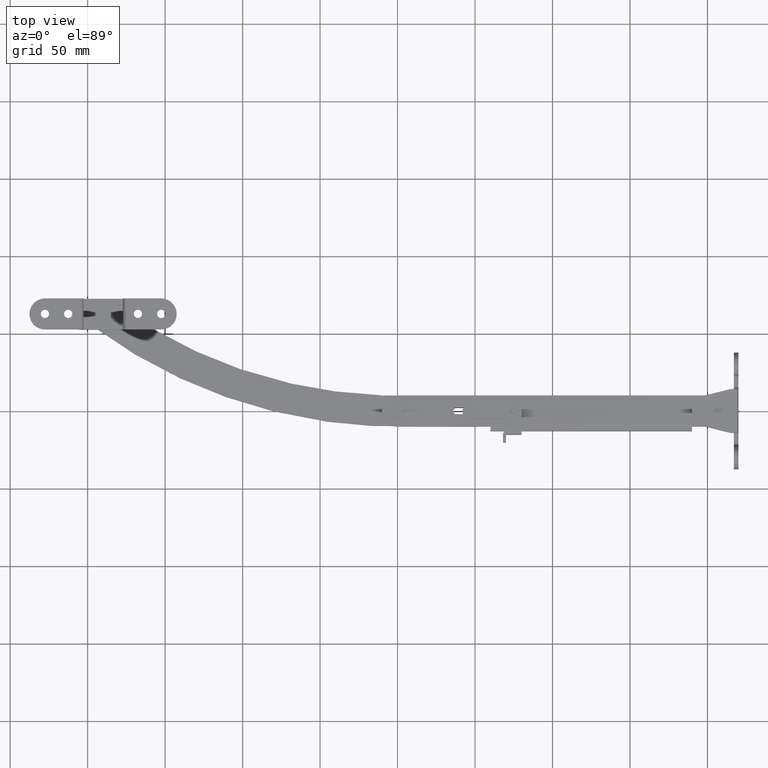
[diagram: clean part render]
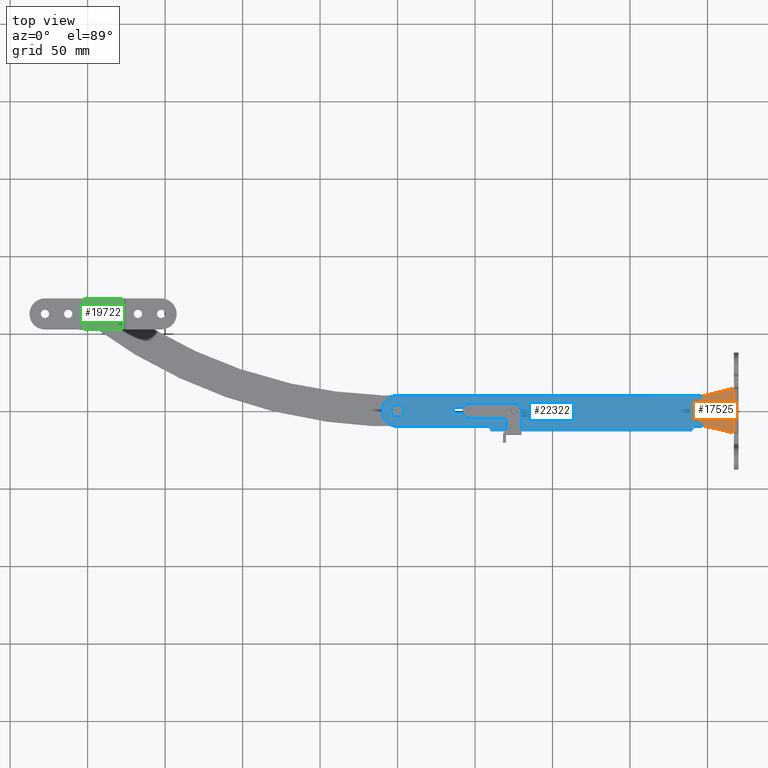
[diagram: same view with three faces highlighted in distinct colors, each labeled with its STEP entity id]
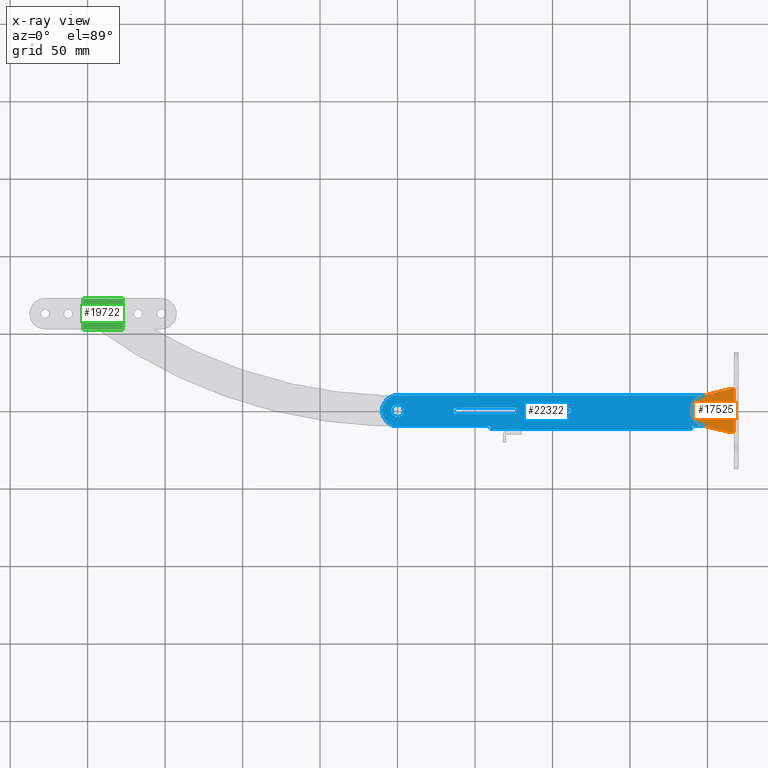
[diagram: x-ray of the same camera — body ghosted, the three highlighted faces saturated]
A machine part, top view with three faces highlighted in distinct colors.
The next image is the same camera in x-ray (body ghosted, the three faces saturated) — at least one of them is partly hidden behind the body in this view.
Their STEP definitions:

[orange] entity #17525 — the highlighted face is a freeform B-spline surface patch.
#15960=CARTESIAN_POINT('',(2.853002078735734,2.803636770112957,11.0));
#15961=VERTEX_POINT('',#15960);
#15967=CARTESIAN_POINT('',(-4.0,0.0,11.0));
#15968=VERTEX_POINT('',#15967);
#15969=CARTESIAN_POINT('',(2.853002078735734,2.803636770112957,11.0));
#15970=CARTESIAN_POINT('',(1.677339680314971,4.0,10.999999999999998));
#15971=CARTESIAN_POINT('',(0.0,4.0,11.0));
#15972=CARTESIAN_POINT('',(-4.000000000000000,4.000000000000000,11.0));
#15973=CARTESIAN_POINT('',(-4.0,0.0,11.0));
#15981=(BOUNDED_CURVE()B_SPLINE_CURVE(2,(#15969,#15970,#15971,#15972,#15973),.UNSPECIFIED.,.F.,.U.)B_SPLINE_CURVE_WITH_KNOTS((3,2,3),(0.623683212041722,0.750000000000000,1.0),.UNSPECIFIED.)CURVE()GEOMETRIC_REPRESENTATION_ITEM()RATIONAL_B_SPLINE_CURVE((0.853569642001059,0.852010677538894,1.0,0.707106781186548,1.0))REPRESENTATION_ITEM(''));
#15982=EDGE_CURVE('',#15961,#15968,#15981,.T.);
#15984=CARTESIAN_POINT('',(2.455465666153532,-3.157639682158366,11.0));
#15985=VERTEX_POINT('',#15984);
#15986=CARTESIAN_POINT('',(-4.0,0.0,11.0));
#15987=CARTESIAN_POINT('',(-4.000000000000000,-4.000000000000000,11.0));
#15988=CARTESIAN_POINT('',(0.0,-4.0,11.0));
#15989=CARTESIAN_POINT('',(1.372220885778162,-4.000000000000001,11.0));
#15990=CARTESIAN_POINT('',(2.455465666153532,-3.157639682158367,11.0));
#15998=(BOUNDED_CURVE()B_SPLINE_CURVE(2,(#15986,#15987,#15988,#15989,#15990),.UNSPECIFIED.,.F.,.U.)B_SPLINE_CURVE_WITH_KNOTS((3,2,3),(0.0,0.250000000000000,0.356197824870483),.UNSPECIFIED.)CURVE()GEOMETRIC_REPRESENTATION_ITEM()RATIONAL_B_SPLINE_CURVE((1.0,0.707106781186548,1.0,0.875581508970788,0.856866802909336))REPRESENTATION_ITEM(''));
#15999=EDGE_CURVE('',#15968,#15985,#15998,.T.);
#16043=CARTESIAN_POINT('',(4.0,0.0,11.0));
#16044=VERTEX_POINT('',#16043);
#16045=CARTESIAN_POINT('',(2.455465666153532,-3.157639682158366,11.0));
#16046=CARTESIAN_POINT('',(4.000000000000000,-1.956568182948945,11.0));
#16047=CARTESIAN_POINT('',(4.0,0.0,11.0));
#16055=(BOUNDED_CURVE()B_SPLINE_CURVE(2,(#16045,#16046,#16047),.UNSPECIFIED.,.F.,.U.)B_SPLINE_CURVE_WITH_KNOTS((3,3),(0.356197824870483,0.500000000000000),.UNSPECIFIED.)CURVE()GEOMETRIC_REPRESENTATION_ITEM()RATIONAL_B_SPLINE_CURVE((0.856866802909336,0.831525272215760,1.0))REPRESENTATION_ITEM(''));
#16056=EDGE_CURVE('',#15985,#16044,#16055,.T.);
#16058=CARTESIAN_POINT('',(4.0,0.0,11.0));
#16059=CARTESIAN_POINT('',(4.0,1.636442735838666,10.999999999999998));
#16060=CARTESIAN_POINT('',(2.853002078735734,2.803636770112957,11.0));
#16068=(BOUNDED_CURVE()B_SPLINE_CURVE(2,(#16058,#16059,#16060),.UNSPECIFIED.,.F.,.U.)B_SPLINE_CURVE_WITH_KNOTS((3,3),(0.500000000000000,0.623683212041721),.UNSPECIFIED.)CURVE()GEOMETRIC_REPRESENTATION_ITEM()RATIONAL_B_SPLINE_CURVE((1.0,0.855096103647655,0.853569642001059))REPRESENTATION_ITEM(''));
#16069=EDGE_CURVE('',#16044,#15961,#16068,.T.);
#16128=CARTESIAN_POINT('',(17.0,14.0,11.0));
#16129=VERTEX_POINT('',#16128);
#16143=CARTESIAN_POINT('',(17.0,-14.0,11.0));
#16144=VERTEX_POINT('',#16143);
#16145=CARTESIAN_POINT('',(17.0,14.0,11.0));
#16146=CARTESIAN_POINT('',(17.0,-14.0,11.0));
#16147=QUASI_UNIFORM_CURVE('',1,(#16145,#16146),.UNSPECIFIED.,.F.,.U.);
#16148=EDGE_CURVE('',#16129,#16144,#16147,.T.);
#16352=CARTESIAN_POINT('',(15.000076807082349,14.0,11.0));
#16353=VERTEX_POINT('',#16352);
#16354=CARTESIAN_POINT('',(-2.410058711234305,9.705236576632409,11.0));
#16355=VERTEX_POINT('',#16354);
#16356=CARTESIAN_POINT('',(15.000076807082349,14.0,11.0));
#16357=CARTESIAN_POINT('',(-2.410058711234305,9.705236576632409,11.0));
#16358=QUASI_UNIFORM_CURVE('',1,(#16356,#16357),.UNSPECIFIED.,.F.,.U.);
#16359=EDGE_CURVE('',#16353,#16355,#16358,.T.);
#16388=CARTESIAN_POINT('',(-2.395019000000000,-9.708954000000000,11.0));
#16389=VERTEX_POINT('',#16388);
#16390=CARTESIAN_POINT('',(15.000045999999999,-14.0,11.0));
#16391=VERTEX_POINT('',#16390);
#16392=CARTESIAN_POINT('',(-2.395019000000000,-9.708954000000000,11.0));
#16393=CARTESIAN_POINT('',(15.000045999999999,-14.0,11.0));
#16394=QUASI_UNIFORM_CURVE('',1,(#16392,#16393),.UNSPECIFIED.,.F.,.U.);
#16395=EDGE_CURVE('',#16389,#16391,#16394,.T.);
#16437=CARTESIAN_POINT('',(-2.410058711234305,9.705236576632409,11.0));
#16438=CARTESIAN_POINT('',(-10.006059581398373,7.818955515734333,11.0));
#16439=CARTESIAN_POINT('',(-9.999996423751082,-0.007743828875747,11.0));
#16440=CARTESIAN_POINT('',(-9.993933266103793,-7.834443173485833,11.0));
#16441=CARTESIAN_POINT('',(-2.395019000000000,-9.708954000000000,11.0));
#16449=(BOUNDED_CURVE()B_SPLINE_CURVE(2,(#16437,#16438,#16439,#16440,#16441),.UNSPECIFIED.,.F.,.U.)B_SPLINE_CURVE_WITH_KNOTS((3,2,3),(0.0,0.500000000000000,1.0),.UNSPECIFIED.)CURVE()GEOMETRIC_REPRESENTATION_ITEM()RATIONAL_B_SPLINE_CURVE((1.0,0.787481433194190,1.0,0.787481433194190,1.0))REPRESENTATION_ITEM(''));
#16450=EDGE_CURVE('',#16355,#16389,#16449,.T.);
#17485=CARTESIAN_POINT('',(15.000045999999999,-14.0,11.0));
#17486=CARTESIAN_POINT('',(17.0,-14.0,11.0));
#17487=QUASI_UNIFORM_CURVE('',1,(#17485,#17486),.UNSPECIFIED.,.F.,.U.);
#17488=EDGE_CURVE('',#16391,#16144,#17487,.T.);
#17502=CARTESIAN_POINT('',(-11.348645932735870,-15.398599945730570,11.0));
#17503=CARTESIAN_POINT('',(-11.348645932735870,15.398600696749090,11.0));
#17504=CARTESIAN_POINT('',(18.348650480859909,-15.398599945730570,11.0));
#17505=CARTESIAN_POINT('',(18.348650480859909,15.398600696749090,11.0));
#17506=B_SPLINE_SURFACE_WITH_KNOTS('',1,1,((#17502,#17504),(#17503,#17505)),.UNSPECIFIED.,.F.,.F.,.U.,(2,2),(2,2),(0.0,30.797200642479670),(0.0,29.697296413595780),.UNSPECIFIED.);
#17507=CARTESIAN_POINT('',(15.000076807082349,14.0,11.0));
#17508=CARTESIAN_POINT('',(17.0,14.0,11.0));
#17509=QUASI_UNIFORM_CURVE('',1,(#17507,#17508),.UNSPECIFIED.,.F.,.U.);
#17510=EDGE_CURVE('',#16353,#16129,#17509,.T.);
#17511=ORIENTED_EDGE('',*,*,#17510,.F.);
#17512=ORIENTED_EDGE('',*,*,#16359,.T.);
#17513=ORIENTED_EDGE('',*,*,#16450,.T.);
#17514=ORIENTED_EDGE('',*,*,#16395,.T.);
#17515=ORIENTED_EDGE('',*,*,#17488,.T.);
#17516=ORIENTED_EDGE('',*,*,#16148,.F.);
#17517=EDGE_LOOP('',(#17511,#17512,#17513,#17514,#17515,#17516));
#17518=FACE_OUTER_BOUND('',#17517,.T.);
#17519=ORIENTED_EDGE('',*,*,#16069,.F.);
#17520=ORIENTED_EDGE('',*,*,#16056,.F.);
#17521=ORIENTED_EDGE('',*,*,#15999,.F.);
#17522=ORIENTED_EDGE('',*,*,#15982,.F.);
#17523=EDGE_LOOP('',(#17519,#17520,#17521,#17522));
#17524=FACE_BOUND('',#17523,.T.);
#17525=ADVANCED_FACE('',(#17518,#17524),#17506,.F.);

[blue] entity #22322 — the highlighted face is a freeform B-spline surface patch.
#20236=CARTESIAN_POINT('',(-90.236068471920163,-1.986019052417495,6.999999999999901));
#20237=VERTEX_POINT('',#20236);
#20243=CARTESIAN_POINT('',(-88.0,0.0,6.999999999999901));
#20244=VERTEX_POINT('',#20243);
#20245=CARTESIAN_POINT('',(-90.236068471920163,-1.986019052417495,6.999999999999901));
#20246=CARTESIAN_POINT('',(-90.118448241938012,-2.000000000000000,6.999999999999900));
#20247=CARTESIAN_POINT('',(-90.0,-2.0,6.999999999999901));
#20248=CARTESIAN_POINT('',(-88.0,-2.000000000000000,6.999999999999899));
#20249=CARTESIAN_POINT('',(-88.0,0.0,6.999999999999901));
#20257=(BOUNDED_CURVE()B_SPLINE_CURVE(2,(#20245,#20246,#20247,#20248,#20249),.UNSPECIFIED.,.F.,.U.)B_SPLINE_CURVE_WITH_KNOTS((3,2,3),(0.229562473072013,0.250000000000000,0.500000000000000),.UNSPECIFIED.)CURVE()GEOMETRIC_REPRESENTATION_ITEM()RATIONAL_B_SPLINE_CURVE((0.956026753318351,0.976055947813902,1.0,0.707106781186548,1.0))REPRESENTATION_ITEM(''));
#20258=EDGE_CURVE('',#20237,#20244,#20257,.T.);
#20260=CARTESIAN_POINT('',(-89.877902918729546,1.996269596709130,6.999999999999901));
#20261=VERTEX_POINT('',#20260);
#20262=CARTESIAN_POINT('',(-88.0,0.0,6.999999999999901));
#20263=CARTESIAN_POINT('',(-88.0,1.881412129655390,6.999999999999900));
#20264=CARTESIAN_POINT('',(-89.877902918729546,1.996269596709130,6.999999999999901));
#20272=(BOUNDED_CURVE()B_SPLINE_CURVE(2,(#20262,#20263,#20264),.UNSPECIFIED.,.F.,.U.)B_SPLINE_CURVE_WITH_KNOTS((3,3),(0.500000000000000,0.739332961861527),.UNSPECIFIED.)CURVE()GEOMETRIC_REPRESENTATION_ITEM()RATIONAL_B_SPLINE_CURVE((1.0,0.719603993728881,0.976072040857843))REPRESENTATION_ITEM(''));
#20273=EDGE_CURVE('',#20244,#20261,#20272,.T.);
#20347=CARTESIAN_POINT('',(-92.0,0.0,6.999999999999901));
#20348=VERTEX_POINT('',#20347);
#20349=CARTESIAN_POINT('',(-89.877902918729546,1.996269596709130,6.999999999999901));
#20350=CARTESIAN_POINT('',(-89.938894471195908,2.000000000000000,6.999999999999901));
#20351=CARTESIAN_POINT('',(-90.0,2.0,6.999999999999901));
#20352=CARTESIAN_POINT('',(-92.0,2.000000000000000,6.999999999999899));
#20353=CARTESIAN_POINT('',(-92.0,0.0,6.999999999999901));
#20361=(BOUNDED_CURVE()B_SPLINE_CURVE(2,(#20349,#20350,#20351,#20352,#20353),.UNSPECIFIED.,.F.,.U.)B_SPLINE_CURVE_WITH_KNOTS((3,2,3),(0.739332961861527,0.750000000000000,1.0),.UNSPECIFIED.)CURVE()GEOMETRIC_REPRESENTATION_ITEM()RATIONAL_B_SPLINE_CURVE((0.976072040857844,0.987502787457668,1.0,0.707106781186548,1.0))REPRESENTATION_ITEM(''));
#20362=EDGE_CURVE('',#20261,#20348,#20361,.T.);
#20364=CARTESIAN_POINT('',(-92.0,0.0,6.999999999999901));
#20365=CARTESIAN_POINT('',(-92.000000000000014,-1.776349047207023,6.999999999999900));
#20366=CARTESIAN_POINT('',(-90.236068471920163,-1.986019052417495,6.999999999999901));
#20374=(BOUNDED_CURVE()B_SPLINE_CURVE(2,(#20364,#20365,#20366),.UNSPECIFIED.,.F.,.U.)B_SPLINE_CURVE_WITH_KNOTS((3,3),(0.0,0.229562473072014),.UNSPECIFIED.)CURVE()GEOMETRIC_REPRESENTATION_ITEM()RATIONAL_B_SPLINE_CURVE((1.0,0.731050833372646,0.956026753318351))REPRESENTATION_ITEM(''));
#20375=EDGE_CURVE('',#20348,#20237,#20374,.T.);
#20608=CARTESIAN_POINT('',(-200.478007650692890,-4.021688581733256,6.999999999999901));
#20609=VERTEX_POINT('',#20608);
#20615=CARTESIAN_POINT('',(-195.949969000000010,0.0,6.999999999999901));
#20616=VERTEX_POINT('',#20615);
#20617=CARTESIAN_POINT('',(-200.478007650692890,-4.021688581733256,6.999999999999901));
#20618=CARTESIAN_POINT('',(-200.239826684926810,-4.050000000000000,6.999999999999901));
#20619=CARTESIAN_POINT('',(-199.999968999999990,-4.050000000000000,6.999999999999901));
#20620=CARTESIAN_POINT('',(-195.949969000000010,-4.050000000000001,6.999999999999899));
#20621=CARTESIAN_POINT('',(-195.949969000000010,0.0,6.999999999999901));
#20629=(BOUNDED_CURVE()B_SPLINE_CURVE(2,(#20617,#20618,#20619,#20620,#20621),.UNSPECIFIED.,.F.,.U.)B_SPLINE_CURVE_WITH_KNOTS((3,2,3),(0.229562473487650,0.250000000000000,0.500000000000000),.UNSPECIFIED.)CURVE()GEOMETRIC_REPRESENTATION_ITEM()RATIONAL_B_SPLINE_CURVE((0.956026754133016,0.976055948300850,1.0,0.707106781186548,1.0))REPRESENTATION_ITEM(''));
#20630=EDGE_CURVE('',#20609,#20616,#20629,.T.);
#20632=CARTESIAN_POINT('',(-199.752722409661400,4.042445933289144,6.999999999999901));
#20633=VERTEX_POINT('',#20632);
#20634=CARTESIAN_POINT('',(-195.949969000000010,0.0,6.999999999999901));
#20635=CARTESIAN_POINT('',(-195.949969000000100,3.809859561105794,6.999999999999899));
#20636=CARTESIAN_POINT('',(-199.752722409661370,4.042445933289145,6.999999999999901));
#20644=(BOUNDED_CURVE()B_SPLINE_CURVE(2,(#20634,#20635,#20636),.UNSPECIFIED.,.F.,.U.)B_SPLINE_CURVE_WITH_KNOTS((3,3),(0.500000000000000,0.739332961796144),.UNSPECIFIED.)CURVE()GEOMETRIC_REPRESENTATION_ITEM()RATIONAL_B_SPLINE_CURVE((1.0,0.719603993805482,0.976072040717715))REPRESENTATION_ITEM(''));
#20645=EDGE_CURVE('',#20616,#20633,#20644,.T.);
#20719=CARTESIAN_POINT('',(-204.049969000000000,0.0,6.999999999999901));
#20720=VERTEX_POINT('',#20719);
#20721=CARTESIAN_POINT('',(-199.752722409661400,4.042445933289144,6.999999999999901));
#20722=CARTESIAN_POINT('',(-199.876230303403670,4.050000000000000,6.999999999999901));
#20723=CARTESIAN_POINT('',(-199.999968999999990,4.050000000000000,6.999999999999901));
#20724=CARTESIAN_POINT('',(-204.049968999999980,4.050000000000001,6.999999999999899));
#20725=CARTESIAN_POINT('',(-204.049969000000000,0.0,6.999999999999901));
#20733=(BOUNDED_CURVE()B_SPLINE_CURVE(2,(#20721,#20722,#20723,#20724,#20725),.UNSPECIFIED.,.F.,.U.)B_SPLINE_CURVE_WITH_KNOTS((3,2,3),(0.739332961796144,0.750000000000000,1.0),.UNSPECIFIED.)CURVE()GEOMETRIC_REPRESENTATION_ITEM()RATIONAL_B_SPLINE_CURVE((0.976072040717716,0.987502787381066,1.0,0.707106781186548,1.0))REPRESENTATION_ITEM(''));
#20734=EDGE_CURVE('',#20633,#20720,#20733,.T.);
#20736=CARTESIAN_POINT('',(-204.049969000000000,0.0,6.999999999999901));
#20737=CARTESIAN_POINT('',(-204.049968999999920,-3.597106829503007,6.999999999999899));
#20738=CARTESIAN_POINT('',(-200.478007650692940,-4.021688581733256,6.999999999999901));
#20746=(BOUNDED_CURVE()B_SPLINE_CURVE(2,(#20736,#20737,#20738),.UNSPECIFIED.,.F.,.U.)B_SPLINE_CURVE_WITH_KNOTS((3,3),(0.0,0.229562473487650),.UNSPECIFIED.)CURVE()GEOMETRIC_REPRESENTATION_ITEM()RATIONAL_B_SPLINE_CURVE((1.0,0.731050832885698,0.956026754133016))REPRESENTATION_ITEM(''));
#20747=EDGE_CURVE('',#20720,#20609,#20746,.T.);
#20980=CARTESIAN_POINT('',(-0.478038650692963,-4.021688581733255,6.999999999999901));
#20981=VERTEX_POINT('',#20980);
#20987=CARTESIAN_POINT('',(4.050000000000000,0.0,6.999999999999901));
#20988=VERTEX_POINT('',#20987);
#20989=CARTESIAN_POINT('',(-0.478038650692963,-4.021688581733255,6.999999999999901));
#20990=CARTESIAN_POINT('',(-0.239857684926848,-4.049999999999999,6.999999999999902));
#20991=CARTESIAN_POINT('',(0.0,-4.050000000000000,6.999999999999901));
#20992=CARTESIAN_POINT('',(4.050000000000001,-4.050000000000001,6.999999999999899));
#20993=CARTESIAN_POINT('',(4.050000000000000,0.0,6.999999999999901));
#21001=(BOUNDED_CURVE()B_SPLINE_CURVE(2,(#20989,#20990,#20991,#20992,#20993),.UNSPECIFIED.,.F.,.U.)B_SPLINE_CURVE_WITH_KNOTS((3,2,3),(0.229562473487649,0.250000000000000,0.500000000000000),.UNSPECIFIED.)CURVE()GEOMETRIC_REPRESENTATION_ITEM()RATIONAL_B_SPLINE_CURVE((0.956026754133015,0.976055948300849,1.0,0.707106781186548,1.0))REPRESENTATION_ITEM(''));
#21002=EDGE_CURVE('',#20981,#20988,#21001,.T.);
#21004=CARTESIAN_POINT('',(0.247246590338580,4.042445933289144,6.999999999999901));
#21005=VERTEX_POINT('',#21004);
#21006=CARTESIAN_POINT('',(4.050000000000000,0.0,6.999999999999901));
#21007=CARTESIAN_POINT('',(4.050000000000001,3.809859561105794,6.999999999999899));
#21008=CARTESIAN_POINT('',(0.247246590338580,4.042445933289145,6.999999999999901));
#21016=(BOUNDED_CURVE()B_SPLINE_CURVE(2,(#21006,#21007,#21008),.UNSPECIFIED.,.F.,.U.)B_SPLINE_CURVE_WITH_KNOTS((3,3),(0.500000000000000,0.739332961796144),.UNSPECIFIED.)CURVE()GEOMETRIC_REPRESENTATION_ITEM()RATIONAL_B_SPLINE_CURVE((1.0,0.719603993805482,0.976072040717715))REPRESENTATION_ITEM(''));
#21017=EDGE_CURVE('',#20988,#21005,#21016,.T.);
#21091=CARTESIAN_POINT('',(-4.050000000000000,0.0,6.999999999999901));
#21092=VERTEX_POINT('',#21091);
#21093=CARTESIAN_POINT('',(0.247246590338580,4.042445933289144,6.999999999999901));
#21094=CARTESIAN_POINT('',(0.123738696596338,4.050000000000000,6.999999999999901));
#21095=CARTESIAN_POINT('',(0.0,4.050000000000000,6.999999999999901));
#21096=CARTESIAN_POINT('',(-4.050000000000001,4.050000000000001,6.999999999999899));
#21097=CARTESIAN_POINT('',(-4.050000000000000,0.0,6.999999999999901));
#21105=(BOUNDED_CURVE()B_SPLINE_CURVE(2,(#21093,#21094,#21095,#21096,#21097),.UNSPECIFIED.,.F.,.U.)B_SPLINE_CURVE_WITH_KNOTS((3,2,3),(0.739332961796144,0.750000000000000,1.0),.UNSPECIFIED.)CURVE()GEOMETRIC_REPRESENTATION_ITEM()RATIONAL_B_SPLINE_CURVE((0.976072040717716,0.987502787381066,1.0,0.707106781186548,1.0))REPRESENTATION_ITEM(''));
#21106=EDGE_CURVE('',#21005,#21092,#21105,.T.);
#21108=CARTESIAN_POINT('',(-4.050000000000000,0.0,6.999999999999901));
#21109=CARTESIAN_POINT('',(-4.050000000000001,-3.597106829502994,6.999999999999900));
#21110=CARTESIAN_POINT('',(-0.478038650692963,-4.021688581733256,6.999999999999901));
#21118=(BOUNDED_CURVE()B_SPLINE_CURVE(2,(#21108,#21109,#21110),.UNSPECIFIED.,.F.,.U.)B_SPLINE_CURVE_WITH_KNOTS((3,3),(0.0,0.229562473487649),.UNSPECIFIED.)CURVE()GEOMETRIC_REPRESENTATION_ITEM()RATIONAL_B_SPLINE_CURVE((1.0,0.731050832885698,0.956026754133015))REPRESENTATION_ITEM(''));
#21119=EDGE_CURVE('',#21092,#20981,#21118,.T.);
#21202=CARTESIAN_POINT('',(-10.0,-12.0,7.0));
#21203=VERTEX_POINT('',#21202);
#21217=CARTESIAN_POINT('',(-140.0,-12.0,7.000000000000321));
#21218=VERTEX_POINT('',#21217);
#21219=CARTESIAN_POINT('',(-10.0,-12.0,7.0));
#21220=CARTESIAN_POINT('',(-140.0,-12.0,7.000000000000321));
#21221=QUASI_UNIFORM_CURVE('',1,(#21219,#21220),.UNSPECIFIED.,.F.,.U.);
#21222=EDGE_CURVE('',#21203,#21218,#21221,.T.);
#21462=CARTESIAN_POINT('',(-125.0,-2.100006000000045,6.999999999999890));
#21463=VERTEX_POINT('',#21462);
#21469=CARTESIAN_POINT('',(-125.0,2.100006000000095,6.999999999999901));
#21470=VERTEX_POINT('',#21469);
#21471=CARTESIAN_POINT('',(-125.0,-2.100006000000045,6.999999999999890));
#21472=CARTESIAN_POINT('',(-122.899999999999990,-2.100006000000045,6.999999999999890));
#21473=CARTESIAN_POINT('',(-122.900000000000010,2.486900E-014,6.999999999999895));
#21474=CARTESIAN_POINT('',(-122.899999999999990,2.100006000000095,6.999999999999899));
#21475=CARTESIAN_POINT('',(-125.0,2.100006000000095,6.999999999999901));
#21483=(BOUNDED_CURVE()B_SPLINE_CURVE(2,(#21471,#21472,#21473,#21474,#21475),.UNSPECIFIED.,.F.,.U.)B_SPLINE_CURVE_WITH_KNOTS((3,2,3),(0.0,0.500000000000000,1.0),.UNSPECIFIED.)CURVE()GEOMETRIC_REPRESENTATION_ITEM()RATIONAL_B_SPLINE_CURVE((1.0,0.707106781186548,1.0,0.707106781186548,1.0))REPRESENTATION_ITEM(''));
#21484=EDGE_CURVE('',#21463,#21470,#21483,.T.);
#21507=CARTESIAN_POINT('',(-161.999968999999990,2.100006000000095,6.999999999999901));
#21508=VERTEX_POINT('',#21507);
#21509=CARTESIAN_POINT('',(-125.0,2.100006000000095,6.999999999999901));
#21510=CARTESIAN_POINT('',(-161.999968999999990,2.100006000000095,6.999999999999901));
#21511=QUASI_UNIFORM_CURVE('',1,(#21509,#21510),.UNSPECIFIED.,.F.,.U.);
#21512=EDGE_CURVE('',#21470,#21508,#21511,.T.);
#21558=CARTESIAN_POINT('',(-161.999969146607500,-2.100000000000000,6.999999999999901));
#21559=VERTEX_POINT('',#21558);
#21560=CARTESIAN_POINT('',(-161.999968999999990,2.100006000000095,6.999999999999901));
#21561=CARTESIAN_POINT('',(-164.099968926696250,2.100005999999990,6.999999999999901));
#21562=CARTESIAN_POINT('',(-164.099968999999990,0.000003073303798,6.999999999999901));
#21563=CARTESIAN_POINT('',(-164.099969073303700,-2.099999853392395,6.999999999999901));
#21564=CARTESIAN_POINT('',(-161.999969146607500,-2.100000000000000,6.999999999999901));
#21572=(BOUNDED_CURVE()B_SPLINE_CURVE(2,(#21560,#21561,#21562,#21563,#21564),.UNSPECIFIED.,.F.,.U.)B_SPLINE_CURVE_WITH_KNOTS((3,2,3),(0.0,0.500000000000000,1.0),.UNSPECIFIED.)CURVE()GEOMETRIC_REPRESENTATION_ITEM()RATIONAL_B_SPLINE_CURVE((1.0,0.707106793527876,1.0,0.707106793527876,1.0))REPRESENTATION_ITEM(''));
#21573=EDGE_CURVE('',#21508,#21559,#21572,.T.);
#21594=CARTESIAN_POINT('',(-161.999969146607500,-2.100000000000000,6.999999999999901));
#21595=CARTESIAN_POINT('',(-125.0,-2.100006000000045,6.999999999999890));
#21596=QUASI_UNIFORM_CURVE('',1,(#21594,#21595),.UNSPECIFIED.,.F.,.U.);
#21597=EDGE_CURVE('',#21559,#21463,#21596,.T.);
#21617=CARTESIAN_POINT('',(1.554348E-014,-9.999999999999799,7.0));
#21618=VERTEX_POINT('',#21617);
#21624=CARTESIAN_POINT('',(-10.0,-9.999999999999799,7.0));
#21625=VERTEX_POINT('',#21624);
#21626=CARTESIAN_POINT('',(-10.0,-9.999999999999799,7.0));
#21627=CARTESIAN_POINT('',(1.554348E-014,-9.999999999999799,7.0));
#21628=QUASI_UNIFORM_CURVE('',1,(#21626,#21627),.UNSPECIFIED.,.F.,.U.);
#21629=EDGE_CURVE('',#21625,#21618,#21628,.T.);
#21653=CARTESIAN_POINT('',(-140.0,-9.999999999999799,7.000000000000321));
#21654=VERTEX_POINT('',#21653);
#21660=CARTESIAN_POINT('',(-199.999968831412500,-9.999999999999799,7.000000000000450));
#21661=VERTEX_POINT('',#21660);
#21662=CARTESIAN_POINT('',(-199.999968831412500,-9.999999999999799,7.000000000000450));
#21663=CARTESIAN_POINT('',(-140.0,-9.999999999999799,7.000000000000321));
#21664=QUASI_UNIFORM_CURVE('',1,(#21662,#21663),.UNSPECIFIED.,.F.,.U.);
#21665=EDGE_CURVE('',#21661,#21654,#21664,.T.);
#21713=CARTESIAN_POINT('',(-199.991055733914490,10.0,7.000000000000450));
#21714=VERTEX_POINT('',#21713);
#21715=CARTESIAN_POINT('',(-199.991055733914490,10.000000000000229,7.000000000000450));
#21716=CARTESIAN_POINT('',(-205.766538211756430,10.005147842232377,7.000000000000450));
#21717=CARTESIAN_POINT('',(-208.657252168175600,5.005148124802156,7.000000000000450));
#21718=CARTESIAN_POINT('',(-211.547966124594720,0.005148407371938,7.000000000000450));
#21719=CARTESIAN_POINT('',(-208.661709864026790,-4.997425844997637,7.000000000000450));
#21720=CARTESIAN_POINT('',(-205.775453603458830,-10.000000097367215,7.000000000000450));
#21721=CARTESIAN_POINT('',(-199.999968831412500,-9.999999999999796,7.000000000000450));
#21729=(BOUNDED_CURVE()B_SPLINE_CURVE(2,(#21715,#21716,#21717,#21718,#21719,#21720,#21721),.UNSPECIFIED.,.F.,.U.)B_SPLINE_CURVE_WITH_KNOTS((3,2,2,3),(0.0,0.333333333333333,0.666666666666667,1.0),.UNSPECIFIED.)CURVE()GEOMETRIC_REPRESENTATION_ITEM()RATIONAL_B_SPLINE_CURVE((1.0,0.865951115611089,1.0,0.865951115611089,1.0,0.865951115611089,1.0))REPRESENTATION_ITEM(''));
#21730=EDGE_CURVE('',#21714,#21661,#21729,.T.);
#21753=CARTESIAN_POINT('',(1.554348E-014,10.0,7.0));
#21754=VERTEX_POINT('',#21753);
#21755=CARTESIAN_POINT('',(1.554348E-014,10.0,7.0));
#21756=CARTESIAN_POINT('',(-199.991055733914490,10.0,7.000000000000450));
#21757=QUASI_UNIFORM_CURVE('',1,(#21755,#21756),.UNSPECIFIED.,.F.,.U.);
#21758=EDGE_CURVE('',#21754,#21714,#21757,.T.);
#21802=CARTESIAN_POINT('',(1.554348E-014,-9.999999999999799,7.0));
#21803=CARTESIAN_POINT('',(10.000000000000016,-10.000000000000002,6.999999999999999));
#21804=CARTESIAN_POINT('',(10.000000000000020,0.0,7.0));
#21805=CARTESIAN_POINT('',(10.000000000000016,10.000000000000002,6.999999999999999));
#21806=CARTESIAN_POINT('',(1.554348E-014,10.0,7.0));
#21814=(BOUNDED_CURVE()B_SPLINE_CURVE(2,(#21802,#21803,#21804,#21805,#21806),.UNSPECIFIED.,.F.,.U.)B_SPLINE_CURVE_WITH_KNOTS((3,2,3),(0.0,0.500000000000000,1.0),.UNSPECIFIED.)CURVE()GEOMETRIC_REPRESENTATION_ITEM()RATIONAL_B_SPLINE_CURVE((1.0,0.707106781186548,1.0,0.707106781186548,1.0))REPRESENTATION_ITEM(''));
#21815=EDGE_CURVE('',#21618,#21754,#21814,.T.);
#22064=CARTESIAN_POINT('',(-140.0,-9.999999999999799,7.000000000000321));
#22065=CARTESIAN_POINT('',(-140.0,-12.0,7.000000000000321));
#22066=QUASI_UNIFORM_CURVE('',1,(#22064,#22065),.UNSPECIFIED.,.F.,.U.);
#22067=EDGE_CURVE('',#21654,#21218,#22066,.T.);
#22134=CARTESIAN_POINT('',(-10.0,-12.0,7.0));
#22135=CARTESIAN_POINT('',(-10.0,-9.999999999999799,7.0));
#22136=QUASI_UNIFORM_CURVE('',1,(#22134,#22135),.UNSPECIFIED.,.F.,.U.);
#22137=EDGE_CURVE('',#21203,#21625,#22136,.T.);
#22283=CARTESIAN_POINT('',(-220.929167137034000,11.098899957359730,6.999999999999890));
#22284=CARTESIAN_POINT('',(20.928793918506969,11.098899957359730,6.999999999999890));
#22285=CARTESIAN_POINT('',(-220.929167137034000,-13.098900547445719,6.999999999999890));
#22286=CARTESIAN_POINT('',(20.928793918506969,-13.098900547445719,6.999999999999890));
#22287=B_SPLINE_SURFACE_WITH_KNOTS('',1,1,((#22283,#22285),(#22284,#22286)),.UNSPECIFIED.,.F.,.F.,.U.,(2,2),(2,2),(0.0,241.857961055541010),(0.0,24.197800504805450),.UNSPECIFIED.);
#22288=ORIENTED_EDGE('',*,*,#22137,.T.);
#22289=ORIENTED_EDGE('',*,*,#21629,.T.);
#22290=ORIENTED_EDGE('',*,*,#21815,.T.);
#22291=ORIENTED_EDGE('',*,*,#21758,.T.);
#22292=ORIENTED_EDGE('',*,*,#21730,.T.);
#22293=ORIENTED_EDGE('',*,*,#21665,.T.);
#22294=ORIENTED_EDGE('',*,*,#22067,.T.);
#22295=ORIENTED_EDGE('',*,*,#21222,.F.);
#22296=EDGE_LOOP('',(#22288,#22289,#22290,#22291,#22292,#22293,#22294,#22295));
#22297=FACE_OUTER_BOUND('',#22296,.T.);
#22298=ORIENTED_EDGE('',*,*,#21484,.F.);
#22299=ORIENTED_EDGE('',*,*,#21597,.F.);
#22300=ORIENTED_EDGE('',*,*,#21573,.F.);
#22301=ORIENTED_EDGE('',*,*,#21512,.F.);
#22302=EDGE_LOOP('',(#22298,#22299,#22300,#22301));
#22303=FACE_BOUND('',#22302,.T.);
#22304=ORIENTED_EDGE('',*,*,#21017,.F.);
#22305=ORIENTED_EDGE('',*,*,#21002,.F.);
#22306=ORIENTED_EDGE('',*,*,#21119,.F.);
#22307=ORIENTED_EDGE('',*,*,#21106,.F.);
#22308=EDGE_LOOP('',(#22304,#22305,#22306,#22307));
#22309=FACE_BOUND('',#22308,.T.);
#22310=ORIENTED_EDGE('',*,*,#20645,.F.);
#22311=ORIENTED_EDGE('',*,*,#20630,.F.);
#22312=ORIENTED_EDGE('',*,*,#20747,.F.);
#22313=ORIENTED_EDGE('',*,*,#20734,.F.);
#22314=EDGE_LOOP('',(#22310,#22311,#22312,#22313));
#22315=FACE_BOUND('',#22314,.T.);
#22316=ORIENTED_EDGE('',*,*,#20273,.F.);
#22317=ORIENTED_EDGE('',*,*,#20258,.F.);
#22318=ORIENTED_EDGE('',*,*,#20375,.F.);
#22319=ORIENTED_EDGE('',*,*,#20362,.F.);
#22320=EDGE_LOOP('',(#22316,#22317,#22318,#22319));
#22321=FACE_BOUND('',#22320,.T.);
#22322=ADVANCED_FACE('',(#22297,#22303,#22309,#22315,#22321),#22287,.F.);

[green] entity #19722 — the highlighted face is a freeform B-spline surface patch.
#19070=CARTESIAN_POINT('',(-395.039672000000000,62.329178000000098,6.999999999999901));
#19071=VERTEX_POINT('',#19070);
#19072=CARTESIAN_POINT('',(-390.431967481455620,57.344591331556117,6.999999999999900));
#19073=VERTEX_POINT('',#19072);
#19074=CARTESIAN_POINT('',(-395.039672000000000,62.329178000000098,6.999999999999901));
#19075=CARTESIAN_POINT('',(-395.039672000000000,57.707225546948123,6.999999999999899));
#19076=CARTESIAN_POINT('',(-390.431967481455620,57.344591331556117,6.999999999999900));
#19084=(BOUNDED_CURVE()B_SPLINE_CURVE(2,(#19074,#19075,#19076),.UNSPECIFIED.,.F.,.U.)B_SPLINE_CURVE_WITH_KNOTS((3,3),(0.0,0.236331300439053),.UNSPECIFIED.)CURVE()GEOMETRIC_REPRESENTATION_ITEM()RATIONAL_B_SPLINE_CURVE((1.0,0.723120658832147,0.969723355767550))REPRESENTATION_ITEM(''));
#19085=EDGE_CURVE('',#19071,#19073,#19084,.T.);
#19126=CARTESIAN_POINT('',(-389.647376518544380,67.313764668444094,6.999999999999901));
#19127=VERTEX_POINT('',#19126);
#19133=CARTESIAN_POINT('',(-389.647376518544380,67.313764668444094,6.999999999999901));
#19134=CARTESIAN_POINT('',(-389.843221462132190,67.329178000000098,6.999999999999901));
#19135=CARTESIAN_POINT('',(-390.039672000000000,67.329178000000098,6.999999999999901));
#19136=CARTESIAN_POINT('',(-395.039672000000000,67.329178000000098,6.999999999999899));
#19137=CARTESIAN_POINT('',(-395.039672000000000,62.329178000000098,6.999999999999901));
#19145=(BOUNDED_CURVE()B_SPLINE_CURVE(2,(#19133,#19134,#19135,#19136,#19137),.UNSPECIFIED.,.F.,.U.)B_SPLINE_CURVE_WITH_KNOTS((3,2,3),(0.736331300439052,0.750000000000000,1.0),.UNSPECIFIED.)CURVE()GEOMETRIC_REPRESENTATION_ITEM()RATIONAL_B_SPLINE_CURVE((0.969723355767547,0.983986122354400,1.0,0.707106781186548,1.0))REPRESENTATION_ITEM(''));
#19146=EDGE_CURVE('',#19127,#19071,#19145,.T.);
#19169=CARTESIAN_POINT('',(-385.039672000000000,62.329178000000098,6.999999999999901));
#19170=VERTEX_POINT('',#19169);
#19171=CARTESIAN_POINT('',(-390.431967481455560,57.344591331556124,6.999999999999900));
#19172=CARTESIAN_POINT('',(-390.236122537867740,57.329178000000105,6.999999999999901));
#19173=CARTESIAN_POINT('',(-390.039672000000000,57.329178000000098,6.999999999999901));
#19174=CARTESIAN_POINT('',(-385.039672000000050,57.329178000000084,6.999999999999899));
#19175=CARTESIAN_POINT('',(-385.039672000000000,62.329178000000098,6.999999999999901));
#19183=(BOUNDED_CURVE()B_SPLINE_CURVE(2,(#19171,#19172,#19173,#19174,#19175),.UNSPECIFIED.,.F.,.U.)B_SPLINE_CURVE_WITH_KNOTS((3,2,3),(0.236331300439053,0.250000000000000,0.500000000000000),.UNSPECIFIED.)CURVE()GEOMETRIC_REPRESENTATION_ITEM()RATIONAL_B_SPLINE_CURVE((0.969723355767549,0.983986122354401,1.0,0.707106781186548,1.0))REPRESENTATION_ITEM(''));
#19184=EDGE_CURVE('',#19073,#19170,#19183,.T.);
#19186=CARTESIAN_POINT('',(-385.039672000000000,62.329178000000098,6.999999999999901));
#19187=CARTESIAN_POINT('',(-385.039672000000110,66.951130453052031,6.999999999999900));
#19188=CARTESIAN_POINT('',(-389.647376518544430,67.313764668444094,6.999999999999901));
#19196=(BOUNDED_CURVE()B_SPLINE_CURVE(2,(#19186,#19187,#19188),.UNSPECIFIED.,.F.,.U.)B_SPLINE_CURVE_WITH_KNOTS((3,3),(0.500000000000000,0.736331300439052),.UNSPECIFIED.)CURVE()GEOMETRIC_REPRESENTATION_ITEM()RATIONAL_B_SPLINE_CURVE((1.0,0.723120658832148,0.969723355767548))REPRESENTATION_ITEM(''));
#19197=EDGE_CURVE('',#19170,#19127,#19196,.T.);
#19399=CARTESIAN_POINT('',(-377.289672000000000,52.329178000000091,6.999999999999890));
#19400=VERTEX_POINT('',#19399);
#19406=CARTESIAN_POINT('',(-402.789672000000000,52.329178000000091,6.999999999999890));
#19407=VERTEX_POINT('',#19406);
#19408=CARTESIAN_POINT('',(-402.789672000000000,52.329178000000091,6.999999999999890));
#19409=CARTESIAN_POINT('',(-377.289672000000000,52.329178000000091,6.999999999999890));
#19410=QUASI_UNIFORM_CURVE('',1,(#19408,#19409),.UNSPECIFIED.,.F.,.U.);
#19411=EDGE_CURVE('',#19407,#19400,#19410,.T.);
#19611=CARTESIAN_POINT('',(-402.789672000000000,72.329178000000184,6.999999999999890));
#19612=VERTEX_POINT('',#19611);
#19618=CARTESIAN_POINT('',(-377.289672000000000,72.329178000000184,6.999999999999890));
#19619=VERTEX_POINT('',#19618);
#19620=CARTESIAN_POINT('',(-402.789672000000000,72.329178000000184,6.999999999999890));
#19621=CARTESIAN_POINT('',(-377.289672000000000,72.329178000000184,6.999999999999890));
#19622=QUASI_UNIFORM_CURVE('',1,(#19620,#19621),.UNSPECIFIED.,.F.,.U.);
#19623=EDGE_CURVE('',#19612,#19619,#19622,.T.);
#19693=CARTESIAN_POINT('',(-377.289672000000000,72.329178000000184,6.999999999999890));
#19694=CARTESIAN_POINT('',(-377.289672000000000,52.329178000000091,6.999999999999890));
#19695=QUASI_UNIFORM_CURVE('',1,(#19693,#19694),.UNSPECIFIED.,.F.,.U.);
#19696=EDGE_CURVE('',#19619,#19400,#19695,.T.);
#19701=CARTESIAN_POINT('',(-376.015947767551210,73.328177961236335,6.999999999999890));
#19702=CARTESIAN_POINT('',(-404.063397600375480,73.328177961236335,6.999999999999890));
#19703=CARTESIAN_POINT('',(-376.015947767551210,51.330177502322158,6.999999999999890));
#19704=CARTESIAN_POINT('',(-404.063397600375480,51.330177502322158,6.999999999999890));
#19705=B_SPLINE_SURFACE_WITH_KNOTS('',1,1,((#19701,#19703),(#19702,#19704)),.UNSPECIFIED.,.F.,.F.,.U.,(2,2),(2,2),(0.0,28.047449832824270),(0.0,21.998000458914181),.UNSPECIFIED.);
#19706=ORIENTED_EDGE('',*,*,#19411,.T.);
#19707=ORIENTED_EDGE('',*,*,#19696,.F.);
#19708=ORIENTED_EDGE('',*,*,#19623,.F.);
#19709=CARTESIAN_POINT('',(-402.789672000000000,72.329178000000184,6.999999999999890));
#19710=CARTESIAN_POINT('',(-402.789672000000000,52.329178000000091,6.999999999999890));
#19711=QUASI_UNIFORM_CURVE('',1,(#19709,#19710),.UNSPECIFIED.,.F.,.U.);
#19712=EDGE_CURVE('',#19612,#19407,#19711,.T.);
#19713=ORIENTED_EDGE('',*,*,#19712,.T.);
#19714=EDGE_LOOP('',(#19706,#19707,#19708,#19713));
#19715=FACE_OUTER_BOUND('',#19714,.T.);
#19716=ORIENTED_EDGE('',*,*,#19197,.F.);
#19717=ORIENTED_EDGE('',*,*,#19184,.F.);
#19718=ORIENTED_EDGE('',*,*,#19085,.F.);
#19719=ORIENTED_EDGE('',*,*,#19146,.F.);
#19720=EDGE_LOOP('',(#19716,#19717,#19718,#19719));
#19721=FACE_BOUND('',#19720,.T.);
#19722=ADVANCED_FACE('',(#19715,#19721),#19705,.T.);